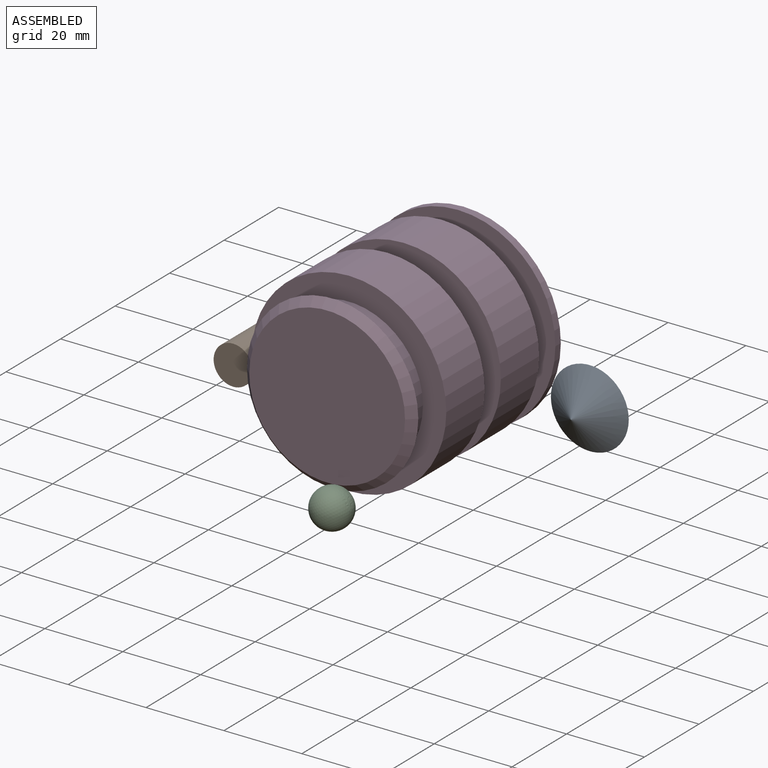
[diagram: assembled view]
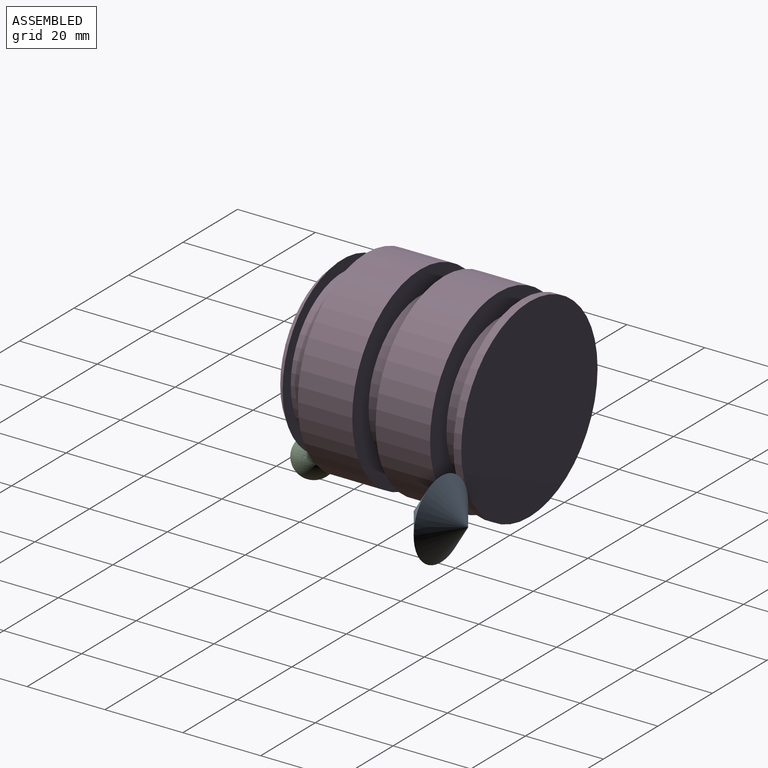
[diagram: assembled view, second angle]
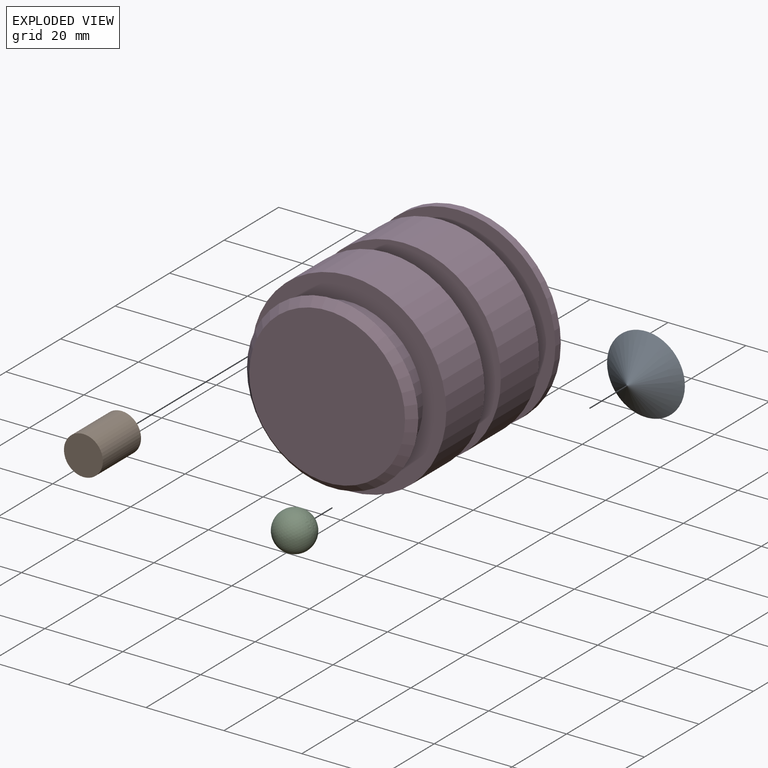
[diagram: exploded view]
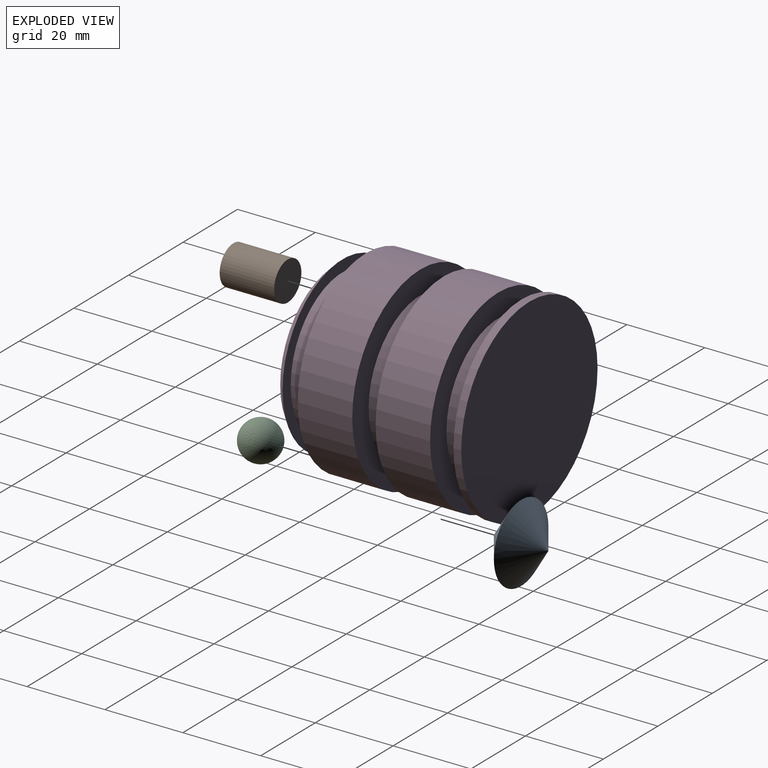
[diagram: exploded view, second angle]
ASSEMBLY  parts=4 mates=3
PART A: 2 faces, bbox 20x14x20 mm
  f0: cone r=0mm half-angle=55deg, axis (0,-1,0), area 383.5mm2, adj f1
  f1: cone r=0mm half-angle=55deg, axis (0,1,0), area 383.5mm2, adj f0
PART B: 3 faces, bbox 10x14x10 mm
  f0: cylinder r=5mm len=14mm, axis (0,1,0), area 439.8mm2, adj f1,f2
  f1: plane 10x10mm, normal (0,-1,0), area 78.5mm2, adj f0
  f2: plane 10x10mm, normal (0,1,0), area 78.5mm2, adj f0
PART C: 1 faces, bbox 10x10x10 mm
  f0: sphere r=5mm, area 314.2mm2
PART D: 15 faces, bbox 50x50x50 mm
  f0: plane 50x50mm, normal (0,1,0), area 829.4mm2, adj f1,f13
  f1: cylinder r=19mm len=38mm, axis (0,-1,0), area 716.3mm2, adj f0,f2
  f2: plane 50x50mm, normal (0,-1,0), area 829.4mm2, adj f1,f3
  f3: cylinder r=25mm len=50mm, axis (0,-1,0), area 2199.1mm2, adj f2,f4
  f4: plane 50x50mm, normal (0,1,0), area 829.4mm2, adj f3,f5
  f5: cylinder r=19mm len=38mm, axis (0,-1,0), area 716.3mm2, adj f4,f6
  f6: plane 50x50mm, normal (0,-1,0), area 829.4mm2, adj f5,f7
  f7: cylinder r=25mm len=50mm, axis (0,-1,0), area 314.2mm2, adj f6,f8
  f8: plane 50x50mm, normal (0,1,0), area 1963.5mm2, adj f7
  f9: plane 40x40mm, normal (0,-1,0), area 1256.6mm2, adj f14
  f10: plane 44x44mm, normal (0,1,0), area 386.4mm2, adj f11,f14
  f11: cylinder r=19mm len=38mm, axis (0,-1,0), area 716.3mm2, adj f10,f12
  f12: plane 50x50mm, normal (0,-1,0), area 829.4mm2, adj f11,f13
  f13: cylinder r=25mm len=50mm, axis (0,-1,0), area 2199.1mm2, adj f0,f12
  f14: cone r=20mm half-angle=45deg, axis (0,1,0), area 373.2mm2, adj f9,f10
PLACE A rot(axis=(0,1,0),160.5deg) t=(-14.68,25,-29.81)mm
PLACE B rot(axis=(0,1,0),64.4deg) t=(-42.71,-3,23.33)mm
PLACE C rot(axis=(0.93,-0.25,0.25),93.9deg) t=(-21.77,-28,19.41)mm
PLACE D at identity fixed
MATE planar D.f14 <-> C.f0  axis (0,1,0) through (0,-24,0)mm
MATE planar A.f0 <-> D.f1  axis (0,1,0) through (32.45,25,-13.12)mm
MATE planar B.f0 <-> D.f14  axis (0,1,0) through (-29.77,-17,-3.73)mm
